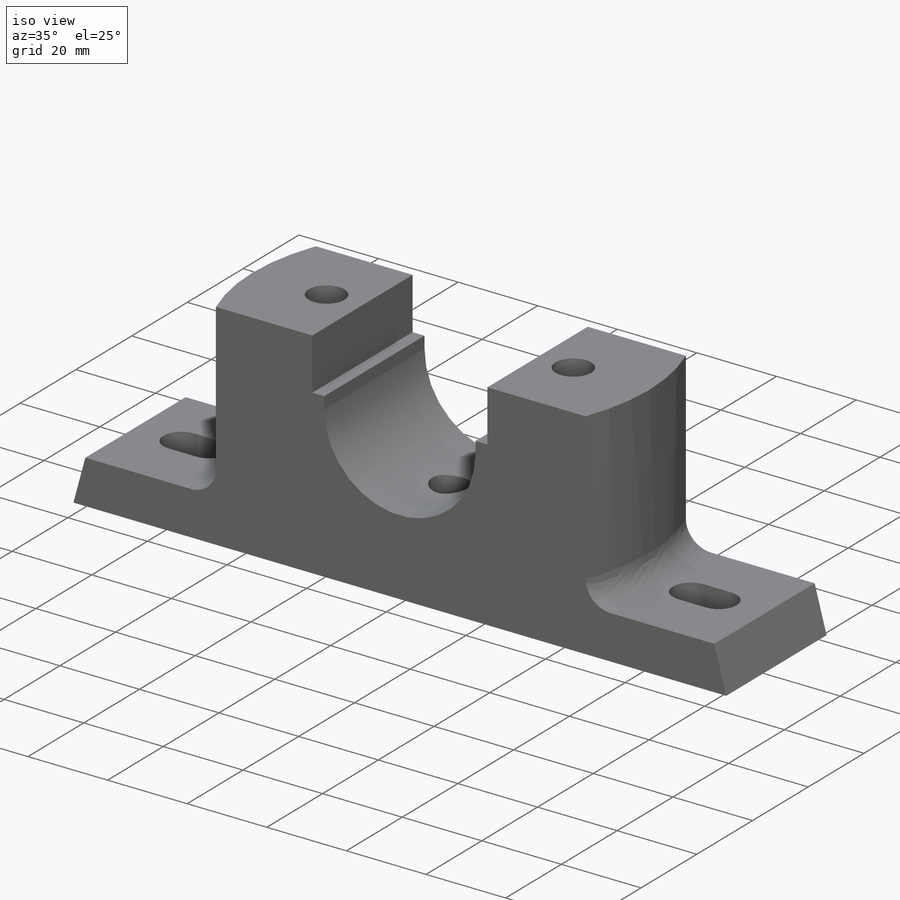
[diagram: iso view]
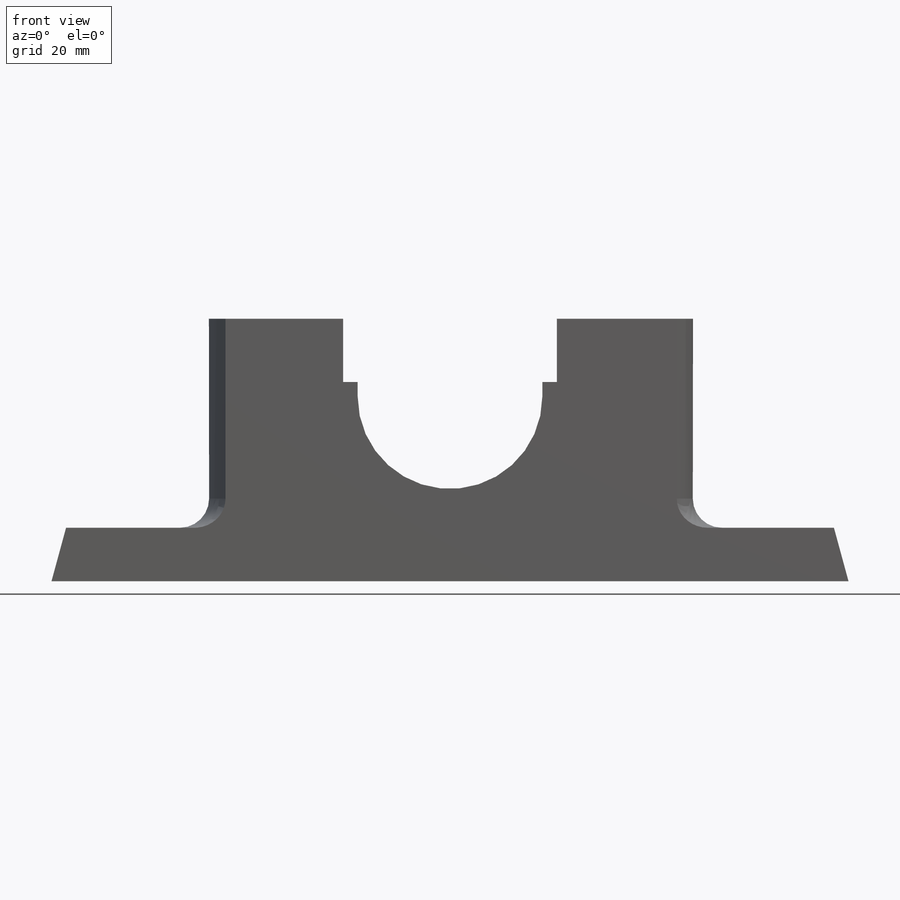
[diagram: front view]
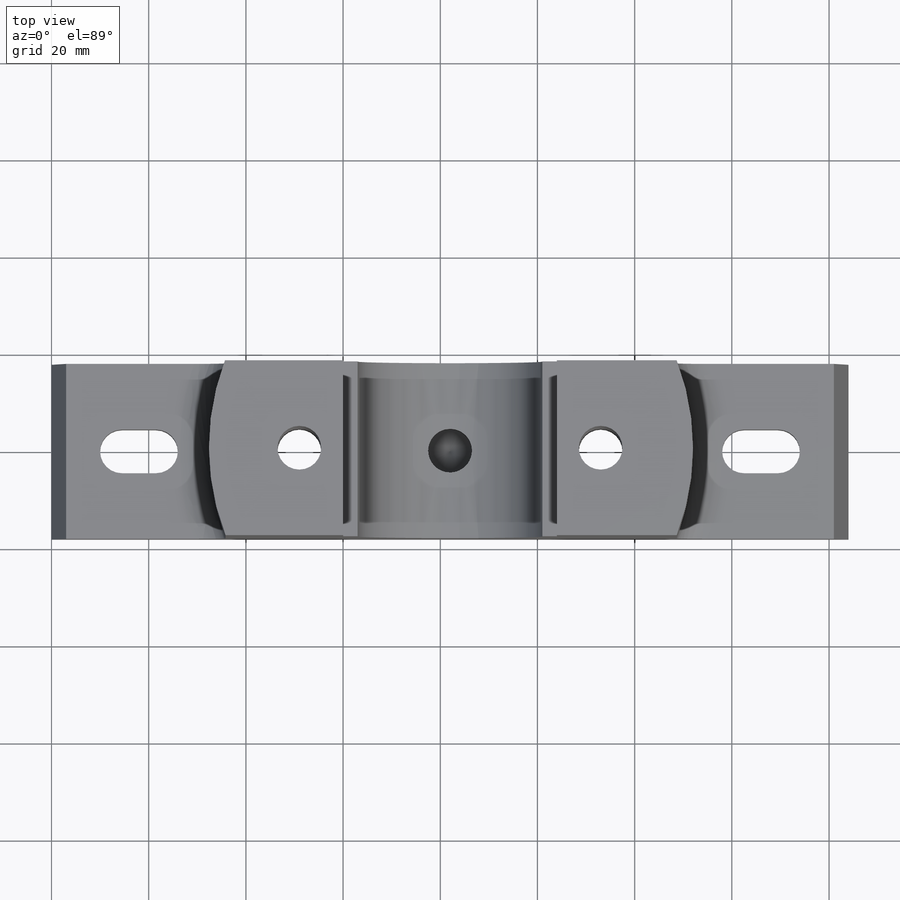
[diagram: top view]
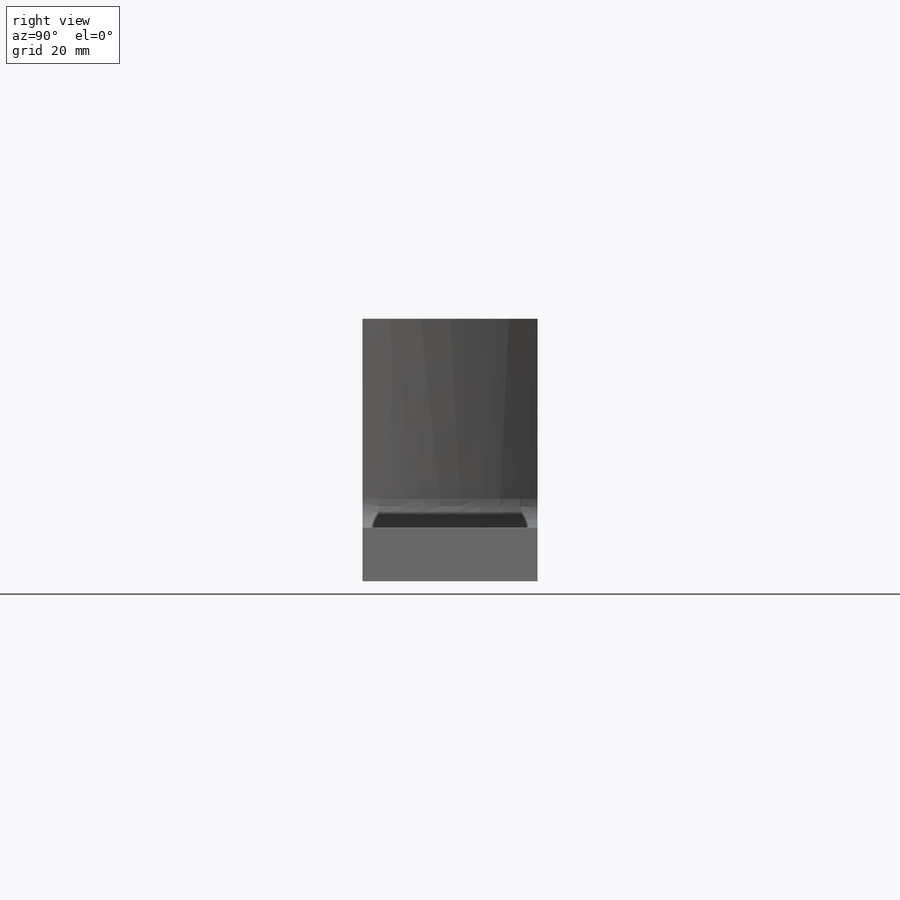
[diagram: right view]
SOLIDWORKS PART (.sldprt)
format: sldprt  version: not decoded by parser v0  size: 346,624 bytes
history: native  units: mm
features: sketch x9, cut_extrude x4, hole x2, mirror x2, fillet x2, material x1, extrude x1, plane x1 (+12 scaffold rows collapsed)
feature tree (34):
  scaffold x12  (default folders/planes/origin — collapsed)
  material  "Material <not specified>"
  sketch  "Sketch1"  dims[c1.D1=19.0mm c1.D2=44.0mm c1.D3=13.0mm c1.D4=16.0mm c1.D5=3.0mm c1.D6=50.0mm c1.D7=54.0mm c1.D8=11.0mm c1.D9=38.0mm c1.D10=11.0mm c2.D10=~149.489763deg c3.D10=28.0mm c3.D3=13.0mm c4.D10=82.0mm c4.D8=~174.552906deg c4.D9=~49.177811deg]
  extrude  "Boss-Extrude1"  Depth=36mm
  sketch  "Sketch3"  dims[D1=50.0mm]
  cut_extrude  "Cut-Extrude1"  Depth=43mm
  plane  "Plane1"  Offset=82mm
  sketch  "Sketch4"
  cut_extrude  "Cut-Extrude2"  Depth=43mm
  sketch  "Sketch5"  dims[D1=9.0mm D2=16.0mm D3=18.0mm]
  cut_extrude  "Cut-Extrude3"  [1 undecoded]
  hole  "Ø6.0mm Dowel Hole3"  Diameter=9mm Depth=54mm
  sketch  "Sketch13"  dims[D1=31.0mm]
  sketch  "Sketch14"  dims[hole-wizard template sketch: 60 standard entries collapsed; hole parameters kept: c18.Thru Hole Depth=54.0mm]
  mirror  "Mirror4"
  sketch  "Sketch15"  dims[D1=20.0mm D2=20.0mm D3=31.0mm D4=0.0mm]
  cut_extrude  "Cut-Extrude5"  Depth=8mm
  mirror  "Mirror5"
  fillet  "Fillet1"  Radius=6mm
  fillet  "Fillet2"  Radius=6mm
  hole  "Ø6.0mm Dowel Hole6"  Diameter=9mm Depth=6mm
  sketch  "3DSketch3"  dims[D1=0.0mm D2=0.0mm]
  sketch  "Sketch23"  dims[hole-wizard template sketch: 46 standard entries collapsed; hole parameters kept: c15.Hole Dia.=9.0mm c15.Hole Depth=6.0mm c15.D3=~14.816244mm c15.Drill Angle=118.0deg]
decode coverage: 16 of 20 modeling features carry decoded parameters
note: ~ marks probable driven/reference dimensions
note: 1 parameter value undecoded
note: suppression state not decoded; provenance and decode notes live in map.json
